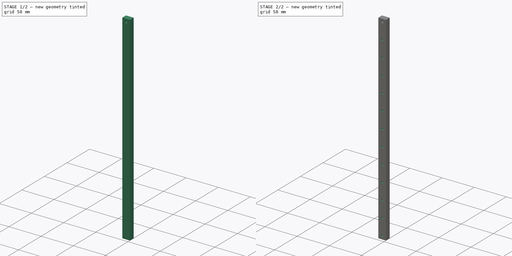
[diagram: build sequence overview — one tinted view per stage of 2, left to right]
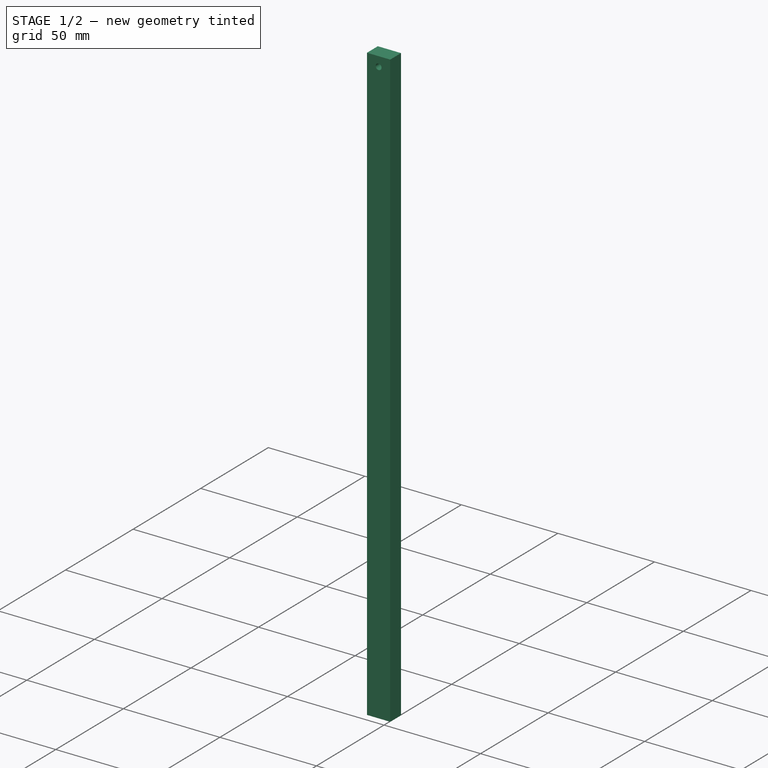
[diagram: stage 1 of 2 — iso view after this stage's code; geometry added in this stage tinted green]
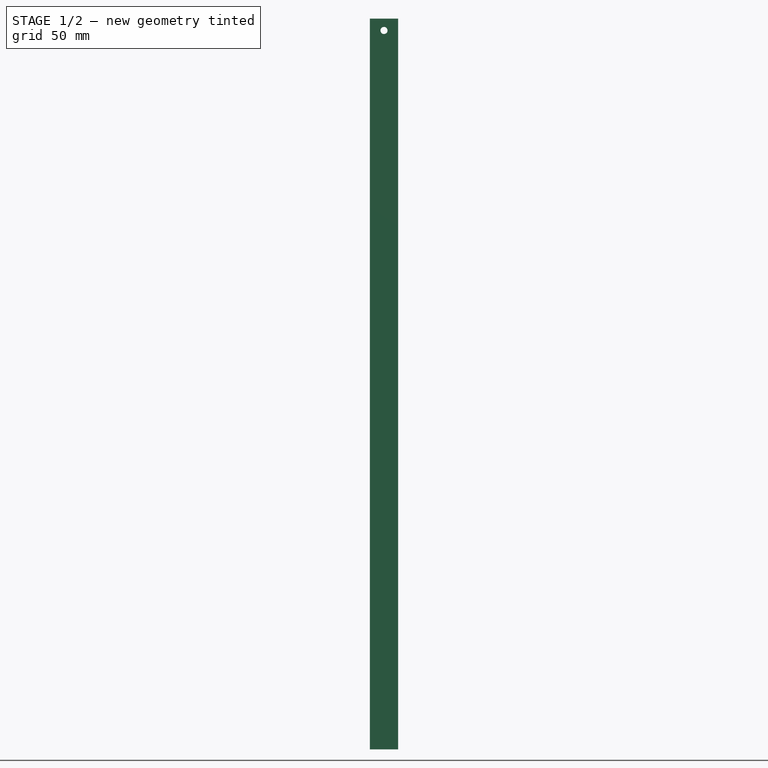
[diagram: stage 1 of 2 — front view after this stage's code; geometry added in this stage tinted green]
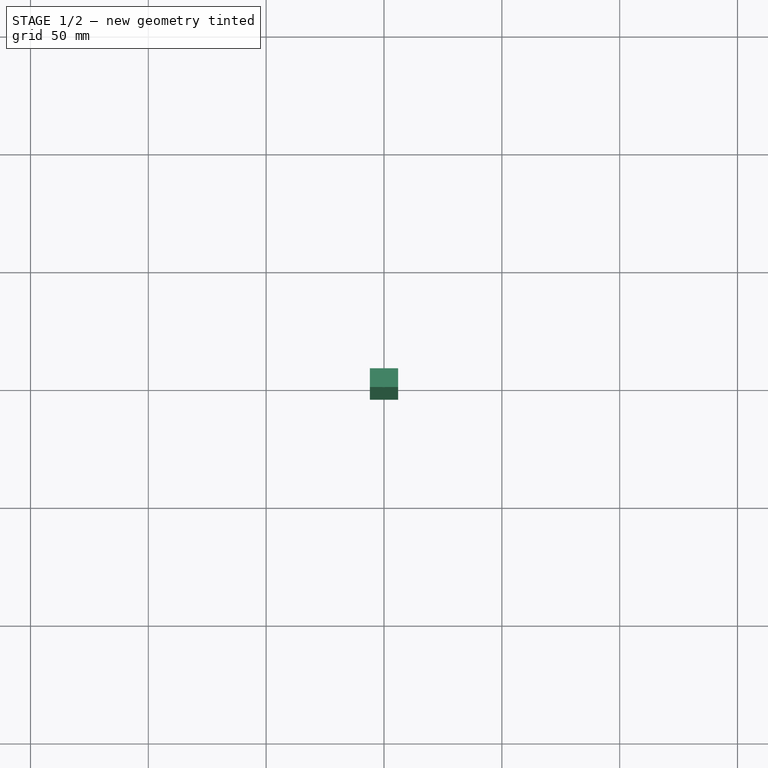
[diagram: stage 1 of 2 — top view after this stage's code; geometry added in this stage tinted green]
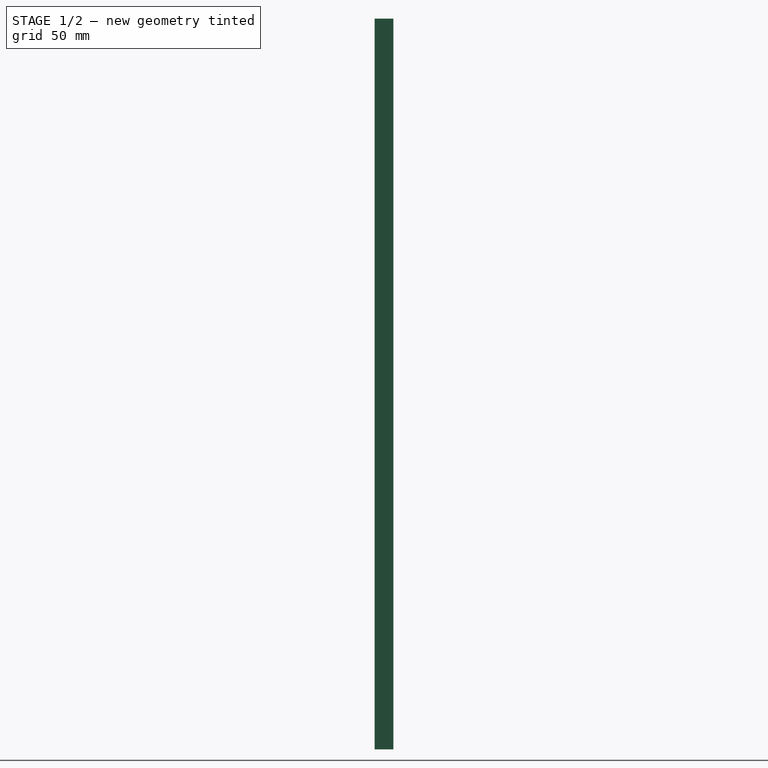
[diagram: stage 1 of 2 — right view after this stage's code; geometry added in this stage tinted green]
FCSTD DOCUMENT  (FreeCAD 1.0R38641 +468 (Git))
Label: cad_rail_mgn12
License: All rights reserved
LicenseURL: https://en.wikipedia.org/wiki/All_rights_reserved
objects: PartDesign::Line×4, Sketcher::SketchObject×2, PartDesign::Pad×1, PartDesign::Pocket×1, PartDesign::LinearPattern×1, PartDesign::Plane×1, PartDesign::Body×1
note: 18 computed .brp shape members not serialized (recipe doc carries the construction recipe); baked Part::Feature solids carry a one-line shape summary decoded from their .brp

FEATURE [Sketcher::SketchObject] Sketch
  ArcFitTolerance = 0
  AttachmentSupport = -> [XY_Plane]
  FullyConstrained = true
  MakeInternals = false
  MapMode = 5
  sketch-geometry (4):
    g0: LineSegment StartX=-6 StartY=4 StartZ=0 EndX=6 EndY=4 EndZ=0
    g1: LineSegment StartX=6 StartY=4 StartZ=0 EndX=6 EndY=-4 EndZ=0
    g2: LineSegment StartX=6 StartY=-4 StartZ=0 EndX=-6 EndY=-4 EndZ=0
    g3: LineSegment StartX=-6 StartY=-4 StartZ=0 EndX=-6 EndY=4 EndZ=0
  constraints (10):
    c: Coincident(g0,g1)
    c: Coincident(g1,g2)
    c: Coincident(g2,g3)
    c: Coincident(g3,g0)
    c: Horizontal(g2)
    c: Vertical(g1)
    c: Symmetric(g0,g0,g-2)
    c: Symmetric(g0,g2,g-1)
    c: Distance(g0) = 12
    c: Distance(g3) = 8
FEATURE [PartDesign::Pad] Pad
  Direction = (0,0,1)
  Length = 310
  Length2 = 10
  Profile = -> Sketch
  ReferenceAxis = -> Sketch [N_Axis]
  Suppressed = false
  Type = 0
FEATURE [Sketcher::SketchObject] Sketch001
  ArcFitTolerance = 0
  AttachmentSupport = -> [Pad]
  ExternalGeometry = -> [Pad]
  FullyConstrained = true
  MakeInternals = false
  MapMode = 5
  Placement = pos=(0,-4,0) rot=(1,0,0;1.5708rad)
  sketch-geometry (1):
    g0: Circle CenterX=0 CenterY=305 CenterZ=0 NormalX=0 NormalY=0 NormalZ=1 AngleXU=0 Radius=1.5
  constraints (3):
    c: PointOnObject(g0,g-2)
    c: Radius(g0) = 1.5
    c: Distance(g0,g-3) = 5
FEATURE [PartDesign::Pocket] Pocket
  BaseFeature = -> Pad
  Direction = (0,1,-2e-16)
  Length = 5
  Length2 = 5
  Profile = -> Sketch001
  ReferenceAxis = -> Sketch001 [N_Axis]
  Suppressed = false
  Type = 1
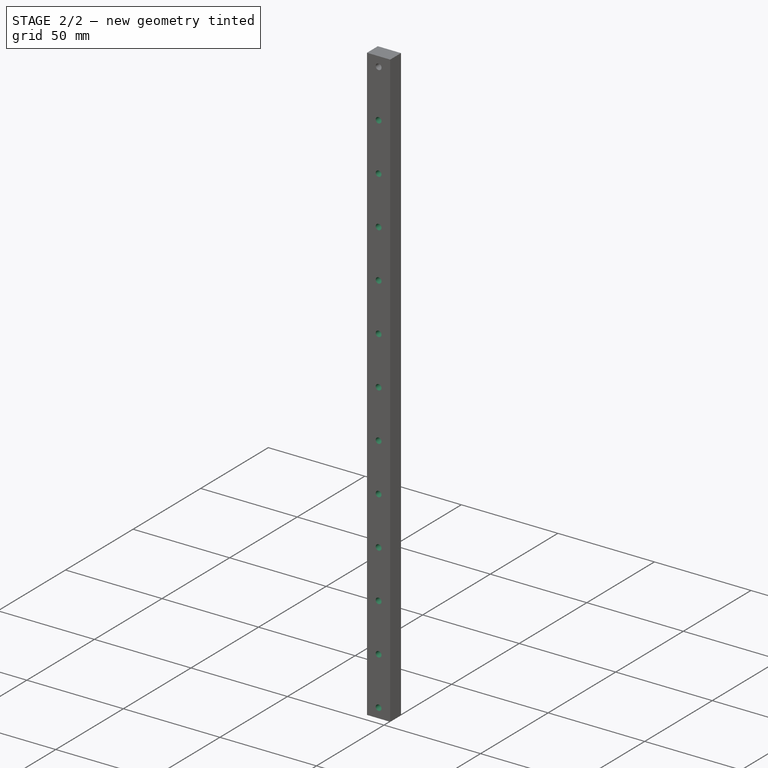
[diagram: stage 2 of 2 — iso view after this stage's code; geometry added in this stage tinted green]
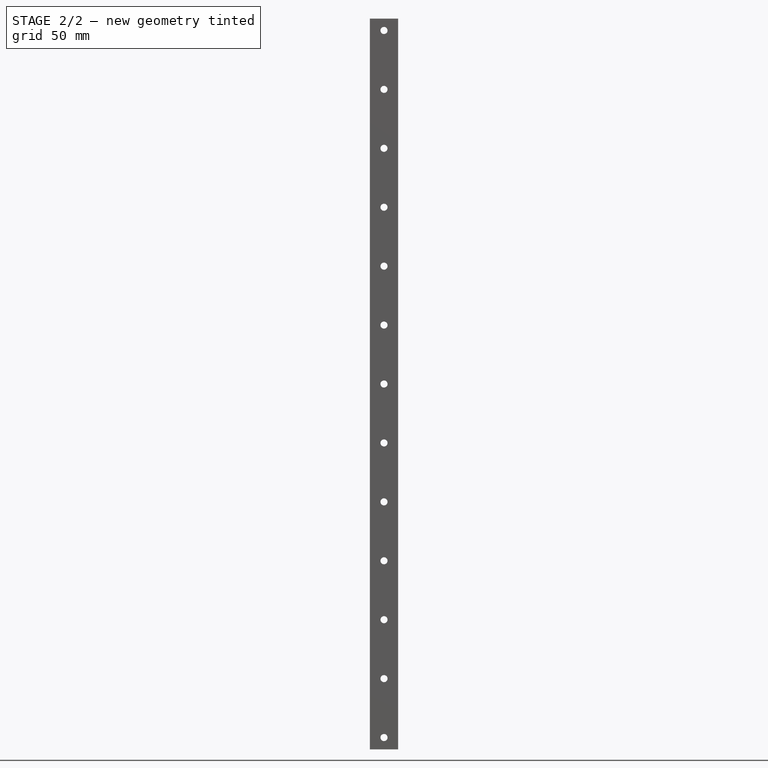
[diagram: stage 2 of 2 — front view after this stage's code; geometry added in this stage tinted green]
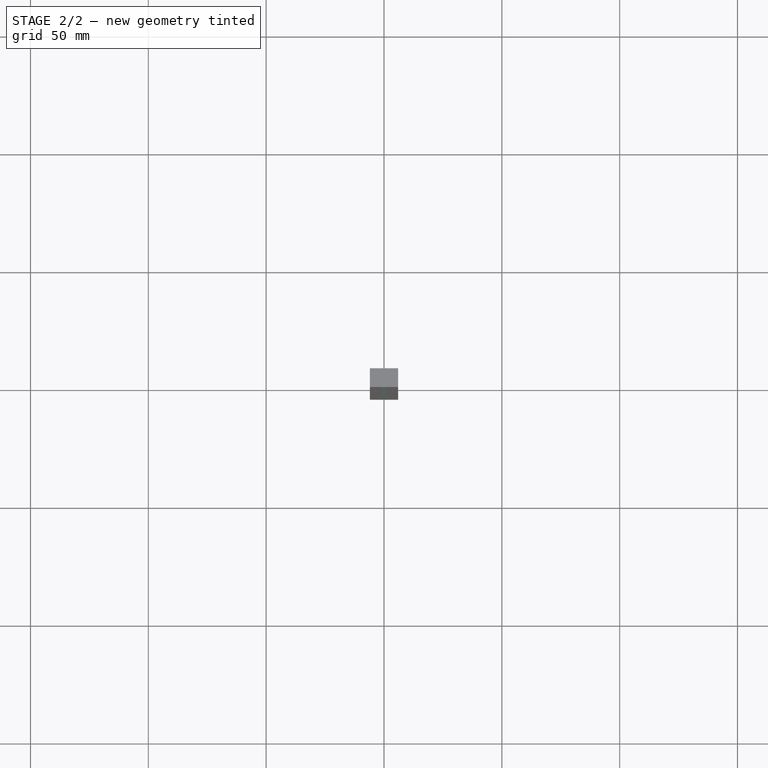
[diagram: stage 2 of 2 — top view after this stage's code; geometry added in this stage tinted green]
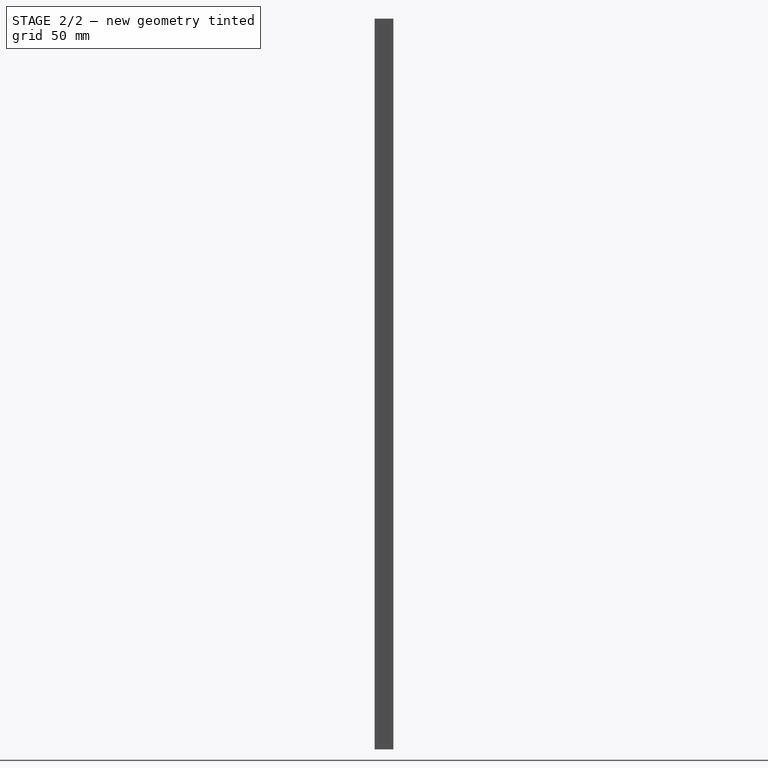
[diagram: stage 2 of 2 — right view after this stage's code; geometry added in this stage tinted green]
FEATURE [PartDesign::LinearPattern] LinearPattern
  BaseFeature = -> Pocket
  Direction = -> Z_Axis
  Length = 300
  Mode = 0
  Occurrences = 13
  Offset = 25
  Originals = -> [Pocket]
  Reversed = true
  Suppressed = false
  TransformMode = 0
FEATURE [PartDesign::Line] HoleAxis_1  label="HoleAxis_left"
  AttacherType = Attacher::AttachEngineLine
  AttachmentSupport = -> [LinearPattern]
  Length = 4.2272
  MapMode = 19
  Placement = pos=(0,-4,305) rot=(1,0,0;1.5708rad)
  ResizeMode = 1
FEATURE [PartDesign::Line] HoleAxis_2  label="HoleAxis_right"
  AttacherType = Attacher::AttachEngineLine
  AttachmentSupport = -> [LinearPattern]
  Length = 4.2272
  MapMode = 19
  Placement = pos=(-3.31e-14,-4,5) rot=(1,0,0;1.5708rad)
  ResizeMode = 1
FEATURE [PartDesign::Plane] DatumPlane  label="Plane_caret"
  AttachmentSupport = -> [LinearPattern]
  Length = 75.8844
  MapMode = 5
  Placement = pos=(0,-4,0) rot=(1,0,0;1.5708rad)
  ResizeMode = 0
  Width = 360.884
FEATURE [PartDesign::Line] HoleAxis_3  label="HoleAxis_right_frame"
  AttacherType = Attacher::AttachEngineLine
  AttachmentSupport = -> [LinearPattern]
  Length = 4.2272
  MapMode = 19
  Placement = pos=(-3.33e-14,4,5) rot=(1,0,0;1.5708rad)
  ResizeMode = 1
FEATURE [PartDesign::Line] HoleAxis_4  label="HoleAxis_left_frame"
  AttacherType = Attacher::AttachEngineLine
  AttachmentSupport = -> [LinearPattern]
  Length = 4.2272
  MapMode = 19
  Placement = pos=(0,4,305) rot=(1,0,0;1.5708rad)
  ResizeMode = 1
FEATURE [PartDesign::Body] Body  label="rail_mgn12"
  AllowCompound = false
  Group = -> [Sketch,Pad,Sketch001,Pocket,LinearPattern,HoleAxis_1,HoleAxis_2,DatumPlane,HoleAxis_3,HoleAxis_4]
  Origin = -> Origin
  Placement = pos=(0,6,4) rot=(0.57735,0.57735,0.57735;2.0944rad)
  Tip = -> LinearPattern
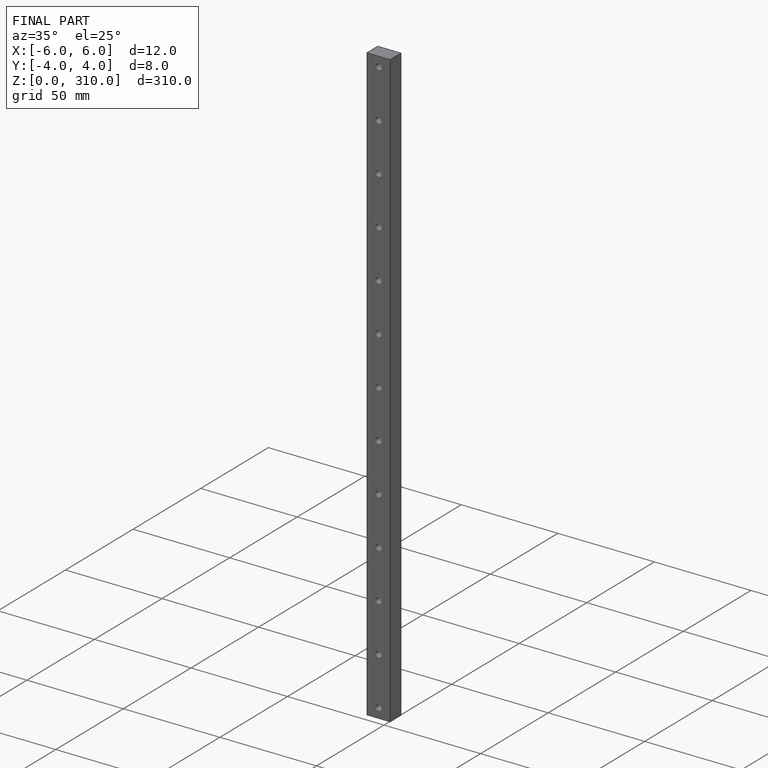
[diagram: finished part — iso view with bounding-box wireframe]
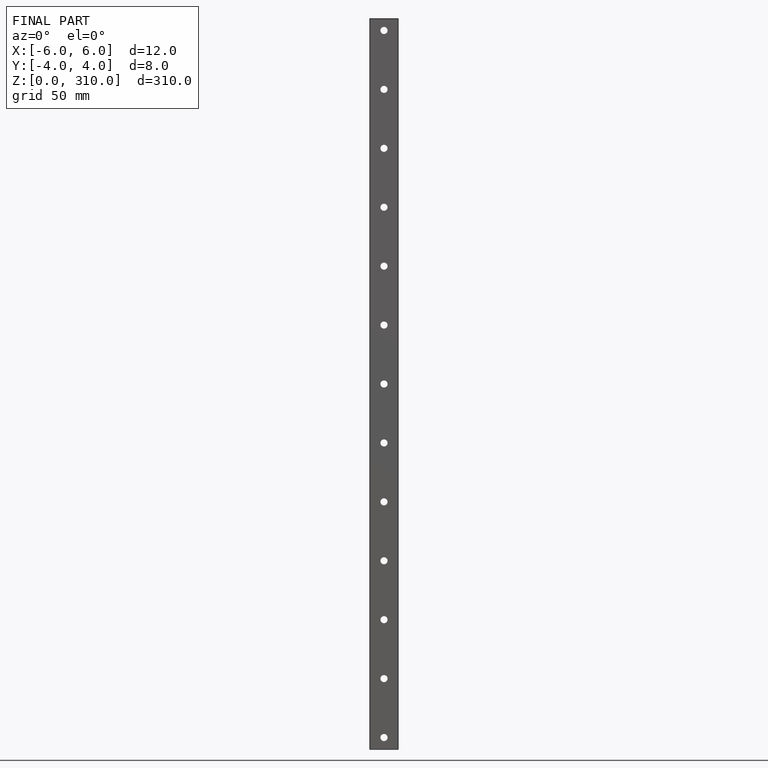
[diagram: finished part — front view with bounding-box wireframe]
